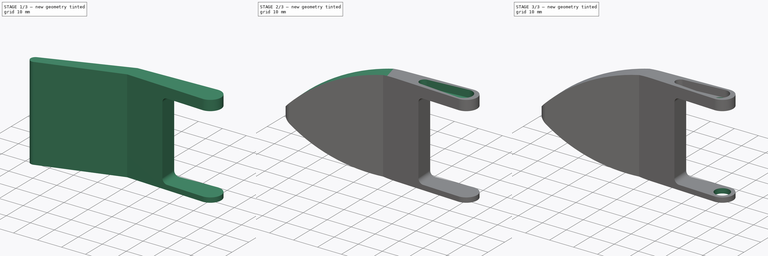
[diagram: build sequence overview — one tinted view per stage of 3, left to right]
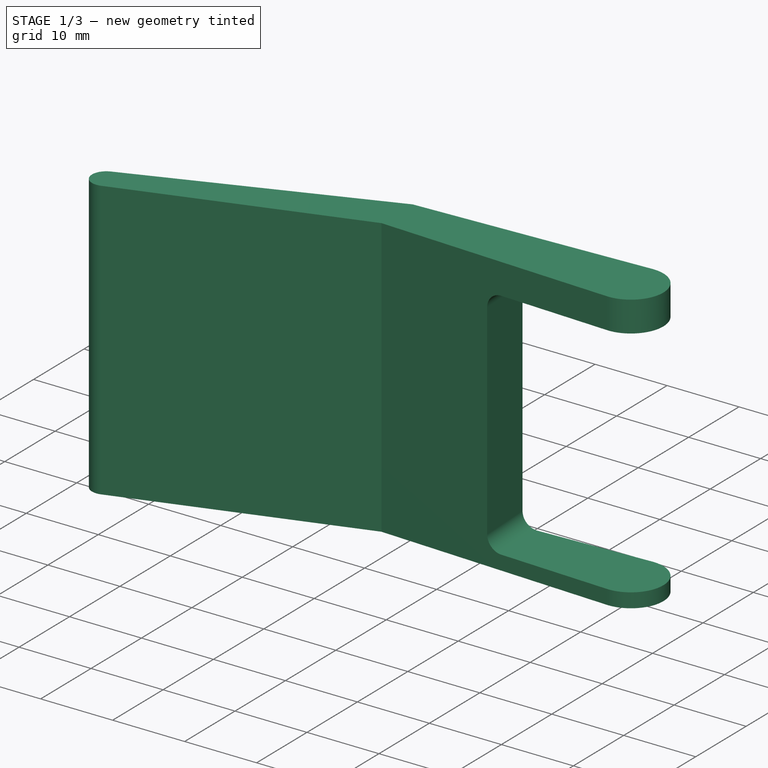
[diagram: stage 1 of 3 — iso view after this stage's code; geometry added in this stage tinted green]
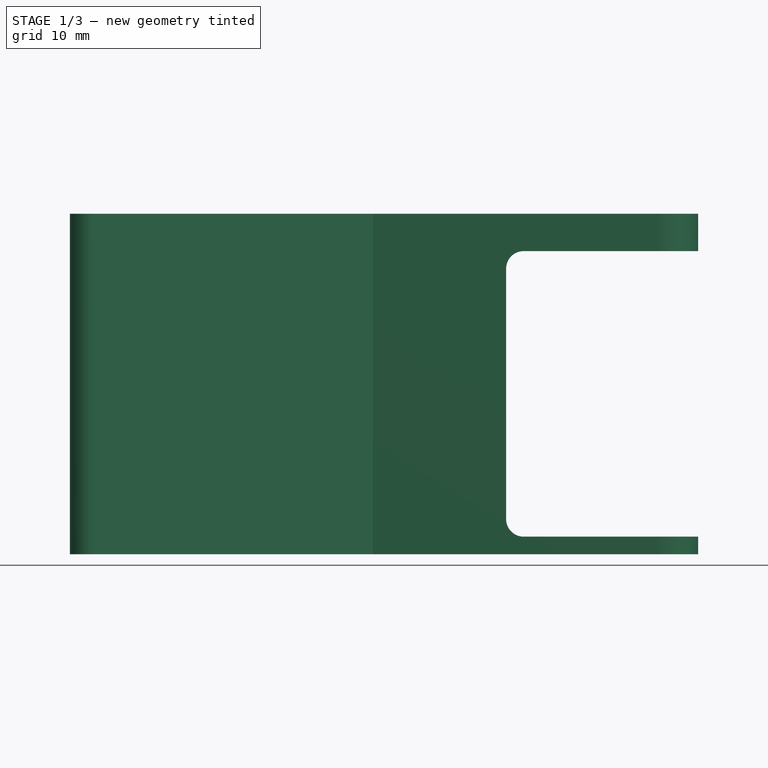
[diagram: stage 1 of 3 — front view after this stage's code; geometry added in this stage tinted green]
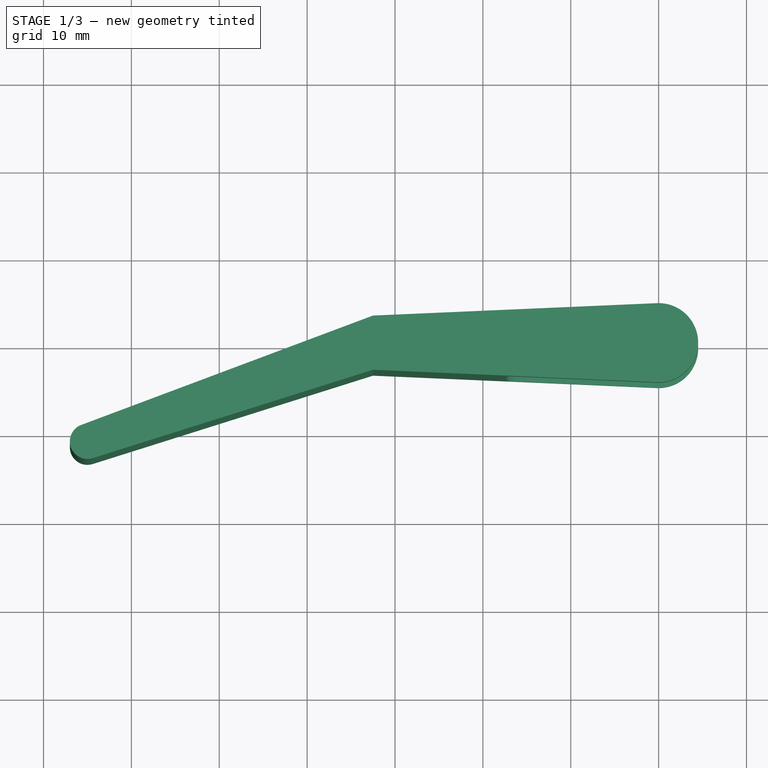
[diagram: stage 1 of 3 — top view after this stage's code; geometry added in this stage tinted green]
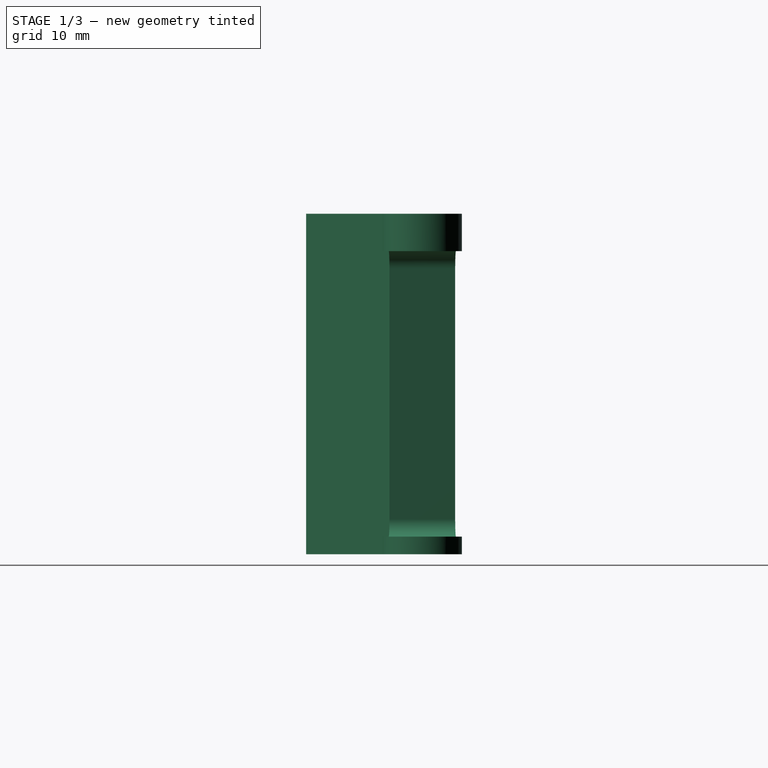
[diagram: stage 1 of 3 — right view after this stage's code; geometry added in this stage tinted green]
FCSTD DOCUMENT  (FreeCAD 0.19R)
Label: tibia
License: All rights reserved
LicenseURL: http://en.wikipedia.org/wiki/All_rights_reserved
objects: Sketcher::SketchObject×6, PartDesign::Pocket×5, PartDesign::Pad×1, PartDesign::Body×1
note: 19 computed .brp shape members not serialized (recipe doc carries the construction recipe); baked Part::Feature solids carry a one-line shape summary decoded from their .brp

FEATURE [Sketcher::SketchObject] Sketch
  MapMode = 5
  Support = -> [XY_Plane]
  sketch-geometry (11):
    g0: ArcOfCircle CenterX=0 CenterY=0 CenterZ=0 NormalX=0 NormalY=0 NormalZ=1 AngleXU=0 Radius=4.5 StartAngle=4.66876 EndAngle=7.89761
    g1: ArcOfCircle CenterX=-65 CenterY=-11.2355 CenterZ=0 NormalX=0 NormalY=0 NormalZ=1 AngleXU=0 Radius=2 StartAngle=1.92949 EndAngle=5.01782
    g2: LineSegment StartX=-65.7021 StartY=-9.36275 StartZ=0 EndX=-32.5 EndY=3.08531 EndZ=0
    g3: LineSegment StartX=-32.5 StartY=3.08531 StartZ=0 EndX=-0.196287 EndY=4.49572 EndZ=0
    g4: LineSegment StartX=-0.196287 StartY=-4.49572 StartZ=0 EndX=-32.5 EndY=-3.08531 EndZ=0
    g5: LineSegment StartX=-32.5 StartY=-3.08531 StartZ=0 EndX=-64.3986 EndY=-13.1429 EndZ=0
    g6: LineSegment [constr] StartX=-32.5 StartY=3.08531 StartZ=0 EndX=-32.5 EndY=0 EndZ=0
    g7: LineSegment [constr] StartX=-32.5 StartY=0 StartZ=0 EndX=-32.5 EndY=-3.08531 EndZ=0
    g8: LineSegment [constr] StartX=-67 StartY=-18.8756 StartZ=0 EndX=4.5 EndY=-18.8756 EndZ=0
    g9: LineSegment [constr] StartX=4.5 StartY=-18.8756 StartZ=0 EndX=4.5 EndY=8.34461 EndZ=0
    g10: LineSegment [constr] StartX=-67 StartY=-18.8756 StartZ=0 EndX=-67 EndY=-5.33436 EndZ=0
  constraints (27):
    c: Coincident(g0,g-1)
    c: Radius(g0) = 4.5
    c: Radius(g1) = 2
    c: Tangent(g1,g2) = 1.5708
    c: Coincident(g2,g3)
    c: Tangent(g0,g4) = 1.5708
    c: Coincident(g4,g5)
    c: Tangent(g5,g1) = 1.5708
    c: Tangent(g3,g0) = 1.5708
    c: DistanceX(g1,g0) = 65
    c: Angle(g5,g4) = 2.79253
    c: Vertical(g2,g4)
    c: Angle(g0) = 3.22886
    c: DistanceX(g4,g0) = 32.5
    c: Coincident(g6,g2)
    c: PointOnObject(g6,g-1)
    c: Vertical(g6)
    c: Coincident(g7,g6)
    c: Coincident(g7,g4)
    c: Equal(g6,g7)
    c: Horizontal(g8)
    c: Coincident(g9,g8)
    c: Vertical(g9)
    c: Tangent(g0,g9)
    c: Coincident(g10,g8)
    c: Vertical(g10)
    c: Tangent(g10,g1)
FEATURE [PartDesign::Pad] Pad
  Length = 38.75
  Length2 = 100
  Profile = -> Sketch
  Type = 0
FEATURE [Sketcher::SketchObject] Sketch001
  ExternalGeometry = -> [Pad]
  MapMode = 5
  Placement = pos=(-0.196287,4.49572,0) rot=(-0.015427,0.707023,0.707023;3.17245rad)
  Support = -> [Pad]
  sketch-geometry (8):
    g0: LineSegment StartX=-4.5 StartY=34.5 StartZ=0 EndX=15.5 EndY=34.5 EndZ=0
    g1: LineSegment StartX=17.5 StartY=32.5 StartZ=0 EndX=17.5 EndY=4 EndZ=0
    g2: LineSegment StartX=15.5 StartY=2 StartZ=0 EndX=-4.5 EndY=2 EndZ=0
    g3: LineSegment StartX=-4.5 StartY=2 StartZ=0 EndX=-4.5 EndY=34.5 EndZ=0
    g4: ArcOfCircle CenterX=15.5 CenterY=32.5 CenterZ=0 NormalX=0 NormalY=0 NormalZ=1 AngleXU=0 Radius=2 StartAngle=-1.8e-15 EndAngle=1.5708
    g5: ArcOfCircle CenterX=15.5 CenterY=4 CenterZ=0 NormalX=0 NormalY=0 NormalZ=1 AngleXU=0 Radius=2 StartAngle=4.71239 EndAngle=6.28319
    g6: LineSegment [constr] StartX=15.5 StartY=2 StartZ=0 EndX=15.5 EndY=0 EndZ=0
    g7: LineSegment [constr] StartX=15.5 StartY=34.5 StartZ=0 EndX=15.5 EndY=38.75 EndZ=0
  constraints (22):
    c: Coincident(g2,g3)
    c: Coincident(g3,g0)
    c: Horizontal(g0)
    c: Horizontal(g2)
    c: Vertical(g1)
    c: Vertical(g3)
    c: Tangent(g0,g4) = 1.5708
    c: Tangent(g1,g4) = 1.5708
    c: Tangent(g1,g5) = 1.5708
    c: Tangent(g2,g5) = 1.5708
    c: Equal(g5,g4)
    c: Radius(g5) = 2
    c: DistanceX(g0,g0) = 20
    c: Coincident(g6,g2)
    c: PointOnObject(g6,g-1)
    c: Vertical(g6)
    c: Coincident(g7,g0)
    c: PointOnObject(g7,g-3)
    c: Vertical(g7)
    c: DistanceX(g-2,g2) = -4.5
    c: DistanceY(g6,g6) = 2
    c: Distance(g0,g2) = 32.5
FEATURE [PartDesign::Pocket] Pocket
  BaseFeature = -> Pad
  Length = 5
  Length2 = 100
  Profile = -> Sketch001
  Type = 1
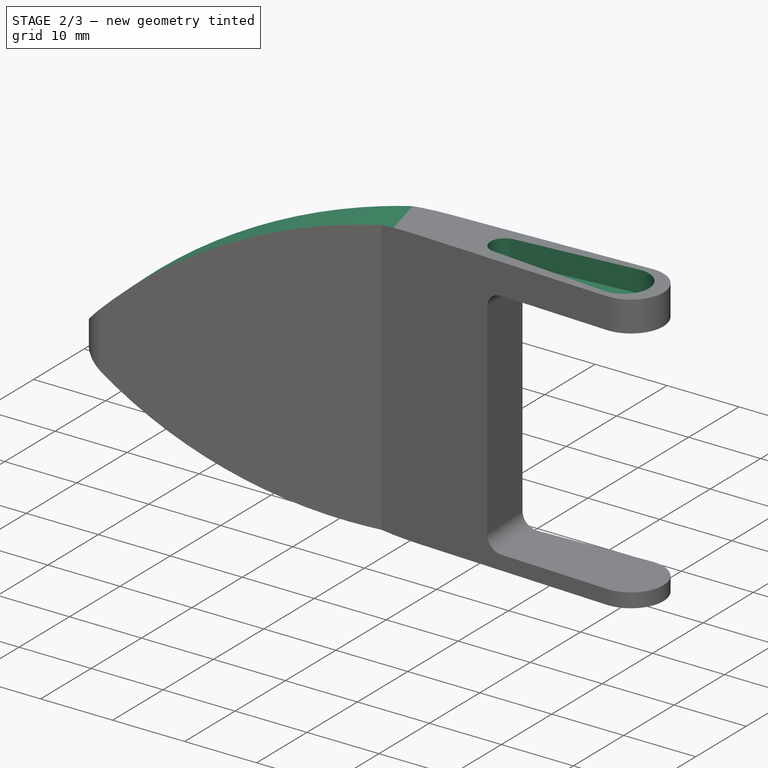
[diagram: stage 2 of 3 — iso view after this stage's code; geometry added in this stage tinted green]
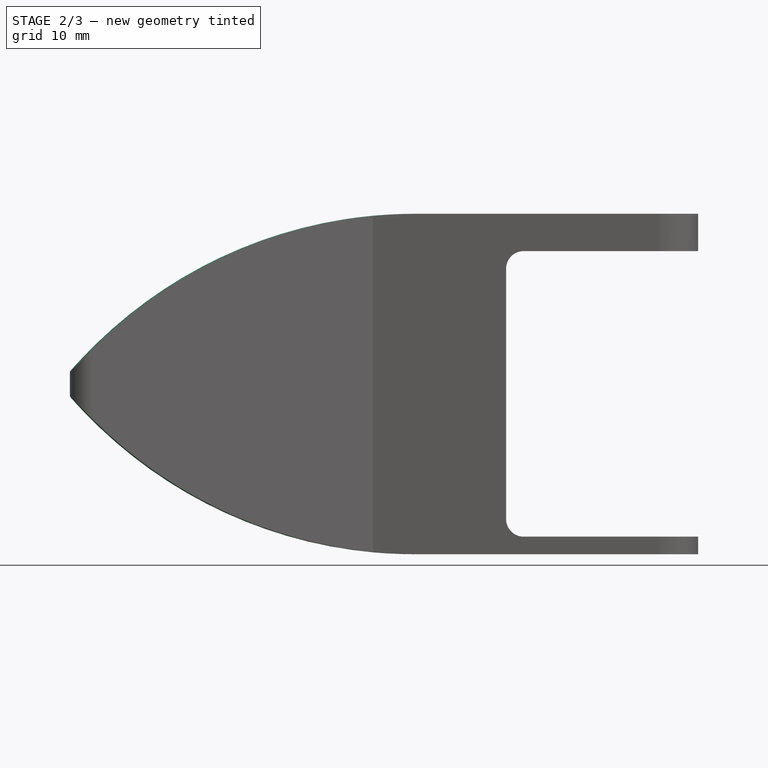
[diagram: stage 2 of 3 — front view after this stage's code; geometry added in this stage tinted green]
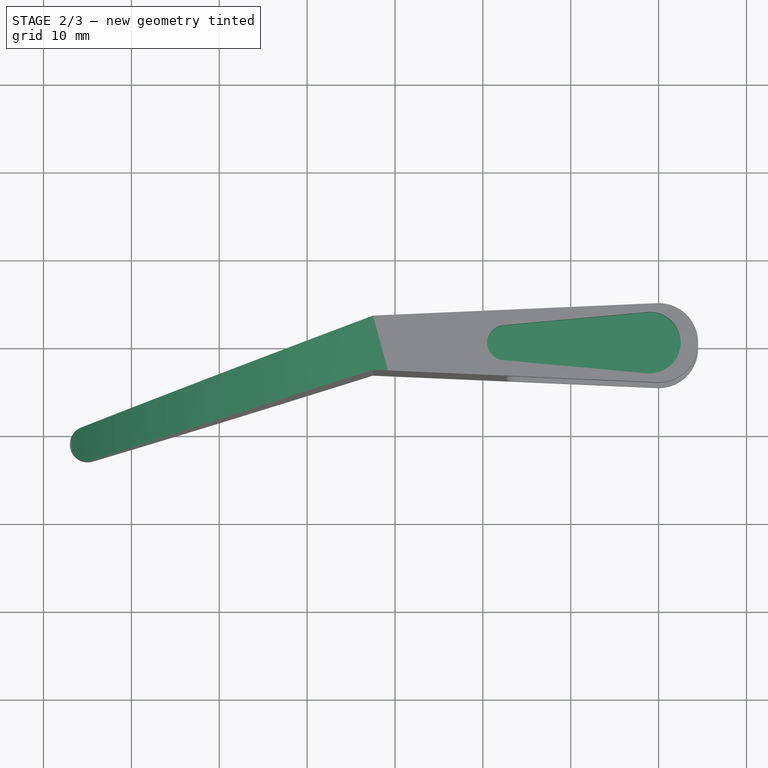
[diagram: stage 2 of 3 — top view after this stage's code; geometry added in this stage tinted green]
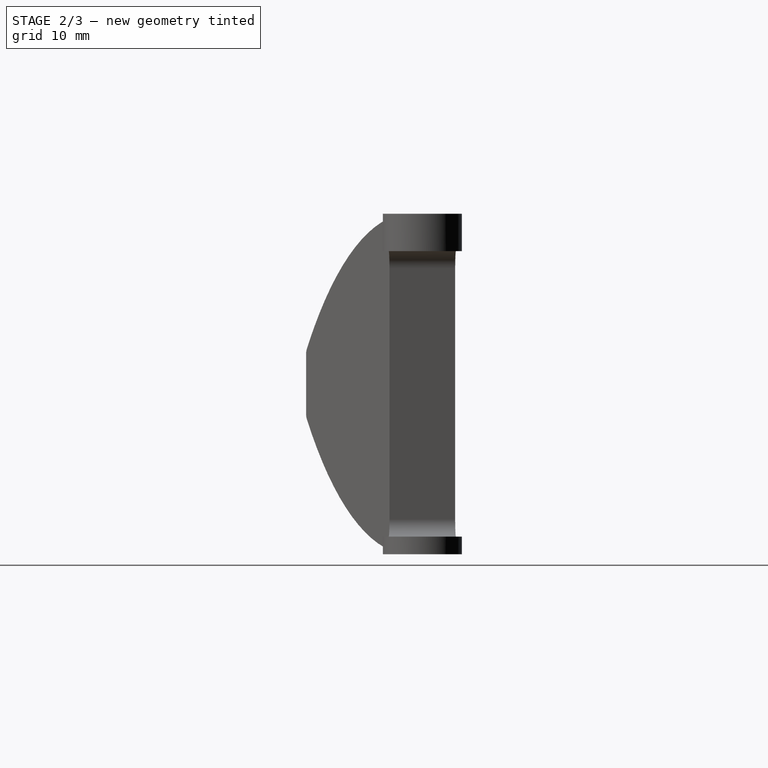
[diagram: stage 2 of 3 — right view after this stage's code; geometry added in this stage tinted green]
FEATURE [Sketcher::SketchObject] Sketch002
  ExternalGeometry = -> [Pocket]
  MapMode = 5
  Placement = pos=(-0.196287,4.49572,0) rot=(-0.015427,0.707023,0.707023;3.17245rad)
  Support = -> [Pocket]
  sketch-geometry (12):
    g0: LineSegment StartX=17.5 StartY=0 StartZ=0 EndX=74.557 EndY=0 EndZ=0
    g1: LineSegment StartX=74.557 StartY=0 StartZ=0 EndX=74.557 EndY=38.75 EndZ=0
    g2: LineSegment StartX=74.557 StartY=38.75 StartZ=0 EndX=17.5 EndY=38.75 EndZ=0
    g3: LineSegment [constr] StartX=66 StartY=19.375 StartZ=0 EndX=66 EndY=38.75 EndZ=0
    g4: LineSegment [constr] StartX=66 StartY=19.375 StartZ=0 EndX=66 EndY=0 EndZ=0
    g5: LineSegment StartX=17.5 StartY=0 StartZ=0 EndX=27.5 EndY=0 EndZ=0
    g6: LineSegment StartX=66 StartY=16.4779 StartZ=0 EndX=67.4469 EndY=17.9943 EndZ=0
    g7: LineSegment StartX=67.4469 StartY=20.7557 StartZ=0 EndX=66 EndY=22.2721 EndZ=0
    g8: LineSegment StartX=27.5 StartY=38.75 StartZ=0 EndX=17.5 EndY=38.75 EndZ=0
    g9: ArcOfCircle CenterX=66 CenterY=19.375 CenterZ=0 NormalX=0 NormalY=0 NormalZ=1 AngleXU=0 Radius=2 StartAngle=5.5212 EndAngle=7.04517
    g10: ArcOfCircle CenterX=27.5 CenterY=53.2158 CenterZ=0 NormalX=0 NormalY=0 NormalZ=1 AngleXU=0 Radius=53.2158 StartAngle=4.71239 EndAngle=5.5212
    g11: ArcOfCircle CenterX=27.5 CenterY=-14.4658 CenterZ=0 NormalX=0 NormalY=0 NormalZ=1 AngleXU=0 Radius=53.2158 StartAngle=0.761981 EndAngle=1.5708
  constraints (32):
    c: Horizontal(g0)
    c: Coincident(g0,g1)
    c: Vertical(g1)
    c: Coincident(g1,g2)
    c: Horizontal(g2)
    c: Vertical(g0,g2)
    c: PointOnObject(g0,g-1)
    c: Horizontal(g2,g-3)
    c: PointOnObject(g3,g2)
    c: Vertical(g3)
    c: PointOnObject(g4,g0)
    c: Vertical(g4)
    c: Equal(g4,g3)
    c: Coincident(g0,g5)
    c: Coincident(g8,g2)
    c: Tangent(g6,g9) = -1.5708
    c: Tangent(g7,g9) = -1.5708
    c: Tangent(g5,g10) = -1.5708
    c: Tangent(g6,g10) = -1.5708
    c: Tangent(g7,g11) = -1.5708
    c: Tangent(g8,g11) = -1.5708
    c: Coincident(g9,g3)
    c: Coincident(g4,g9)
    c: Radius(g9) = 2
    c: Vertical(g10,g11)
    c: Equal(g10,g11)
    c: Vertical(g0,g-4)
    c: PointOnObject(g5,g-1)
    c: DistanceX(g-2,g9) = 66
    c: Distance(g5,g0) = 10
    c: Vertical(g8,g5)
    c: Vertical(g3,g7)
FEATURE [PartDesign::Pocket] Pocket001
  BaseFeature = -> Pocket
  Length = 5
  Length2 = 100
  Profile = -> Sketch002
  Type = 1
FEATURE [Sketcher::SketchObject] Sketch003
  ExternalGeometry = -> [Pocket001]
  MapMode = 5
  Placement = pos=(0,0,38.75) rot=(0,0,1;0rad)
  Support = -> [Pocket001]
  sketch-geometry (7):
    g0: Circle [constr] CenterX=-1 CenterY=0 CenterZ=0 NormalX=0 NormalY=0 NormalZ=1 AngleXU=0 Radius=3.5
    g1: Circle [constr] CenterX=-17.5 CenterY=0 CenterZ=0 NormalX=0 NormalY=0 NormalZ=1 AngleXU=0 Radius=2
    g2: ArcOfCircle CenterX=-17.5 CenterY=0 CenterZ=0 NormalX=0 NormalY=0 NormalZ=1 AngleXU=0 Radius=2 StartAngle=1.66183 EndAngle=4.62135
    g3: ArcOfCircle CenterX=-1 CenterY=0 CenterZ=0 NormalX=0 NormalY=0 NormalZ=1 AngleXU=0 Radius=3.5 StartAngle=4.62135 EndAngle=7.94502
    g4: LineSegment StartX=-17.6818 StartY=1.99172 StartZ=0 EndX=-1.31818 EndY=3.48551 EndZ=0
    g5: LineSegment StartX=-17.6818 StartY=-1.99172 StartZ=0 EndX=-1.3182 EndY=-3.48551 EndZ=0
    g6: GeomPoint X=4.5 Y=0 Z=0
  constraints (17):
    c: Coincident(g2,g1)
    c: PointOnObject(g2,g1)
    c: Coincident(g3,g0)
    c: PointOnObject(g3,g0)
    c: Radius(g0) = 3.5
    c: Radius(g2) = 2
    c: Horizontal(g2,g3)
    c: Coincident(g5,g3)
    c: Tangent(g5,g0)
    c: Tangent(g5,g2) = -1.5708
    c: Tangent(g4,g2) = 1.5708
    c: Tangent(g4,g3) = 1.5708
    c: DistanceX(g2,g3) = 16.5
    c: PointOnObject(g3,g-1)
    c: PointOnObject(g6,g-1)
    c: PointOnObject(g6,g-3)
    c: DistanceX(g3,g6) = 5.5
FEATURE [PartDesign::Pocket] Pocket002
  BaseFeature = -> Pocket001
  Length = 3
  Length2 = 100
  Profile = -> Sketch003
  Type = 0
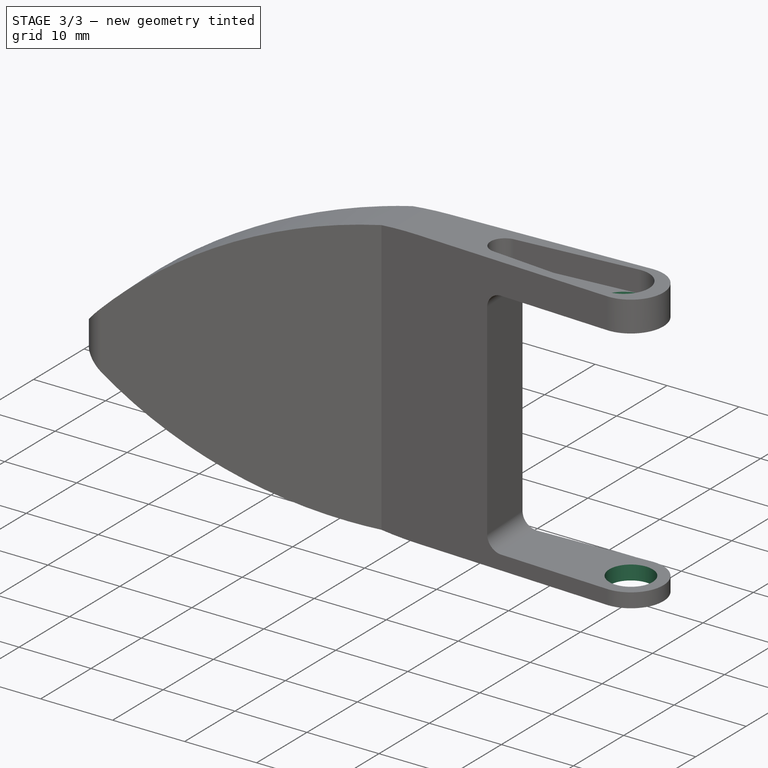
[diagram: stage 3 of 3 — iso view after this stage's code; geometry added in this stage tinted green]
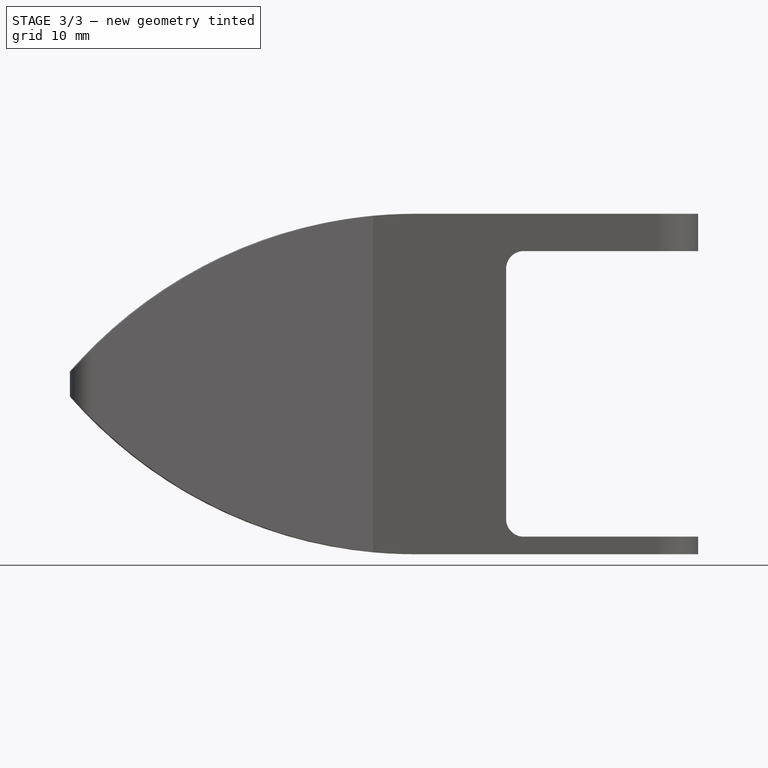
[diagram: stage 3 of 3 — front view after this stage's code; geometry added in this stage tinted green]
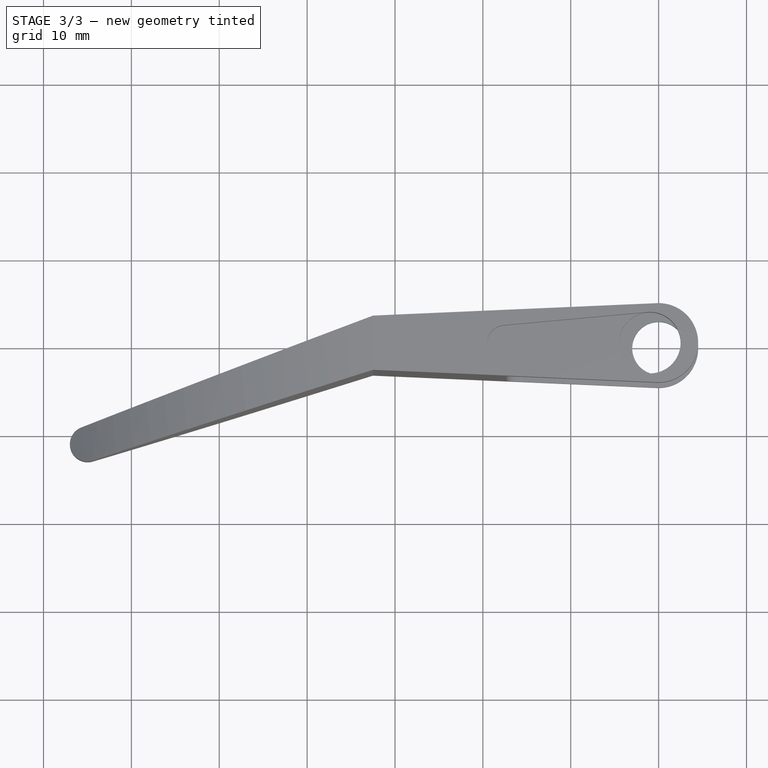
[diagram: stage 3 of 3 — top view after this stage's code; geometry added in this stage tinted green]
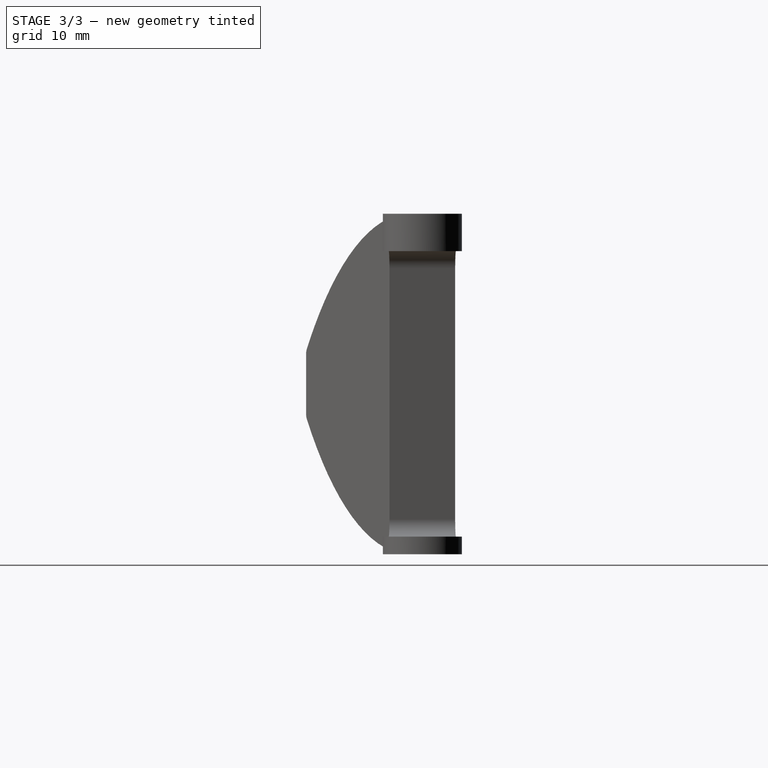
[diagram: stage 3 of 3 — right view after this stage's code; geometry added in this stage tinted green]
FEATURE [Sketcher::SketchObject] Sketch004
  ExternalGeometry = -> [Pocket002]
  MapMode = 5
  Placement = pos=(0,0,35.75) rot=(0,0,1;0rad)
  Support = -> [Pocket002]
  sketch-geometry (1):
    g0: Circle CenterX=-1 CenterY=0 CenterZ=0 NormalX=0 NormalY=0 NormalZ=1 AngleXU=0 Radius=3.5
  constraints (2):
    c: Coincident(g0,g-3)
    c: Equal(g0,g-3)
FEATURE [PartDesign::Pocket] Pocket003
  BaseFeature = -> Pocket002
  Length = 5
  Length2 = 100
  Profile = -> Sketch004
  Type = 0
FEATURE [Sketcher::SketchObject] Sketch005
  MapMode = 5
  Placement = pos=(0,0,0) rot=(1,0,0;3.14159rad)
  Support = -> [Pocket003]
  sketch-geometry (1):
    g0: Circle CenterX=0 CenterY=0 CenterZ=0 NormalX=0 NormalY=0 NormalZ=1 AngleXU=0 Radius=3
  constraints (2):
    c: Coincident(g0,g-1)
    c: Radius(g0) = 3
FEATURE [PartDesign::Pocket] Pocket004
  BaseFeature = -> Pocket003
  Length = 5
  Length2 = 100
  Profile = -> Sketch005
  Type = 0
FEATURE [PartDesign::Body] Body
  Group = -> [Sketch,Pad,Sketch001,Pocket,Sketch002,Pocket001,Sketch003,Pocket002,Sketch004,Pocket003,Sketch005,Pocket004]
  Origin = -> Origin
  Tip = -> Pocket004
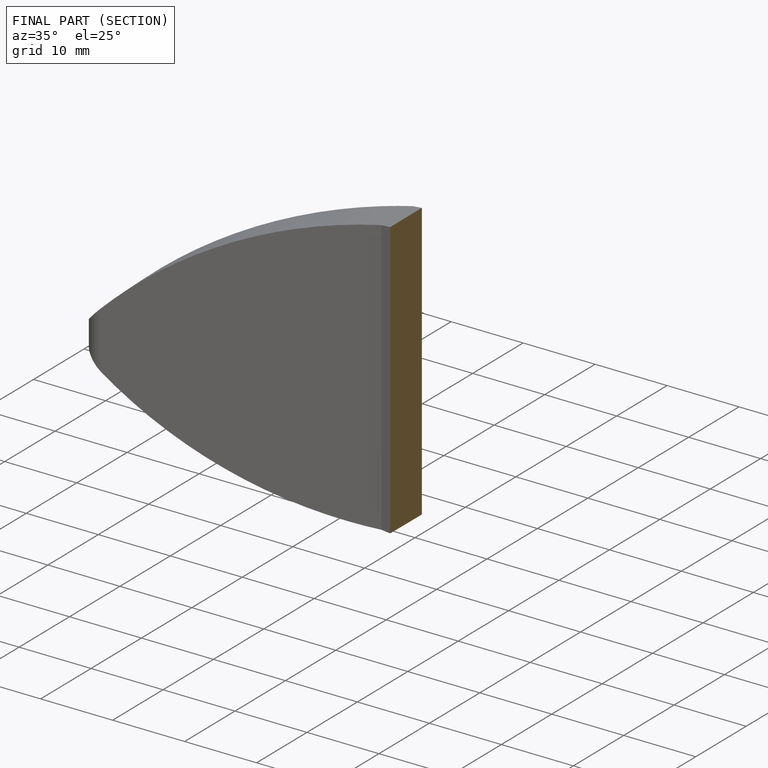
[diagram: finished part — half-section view (interior)]
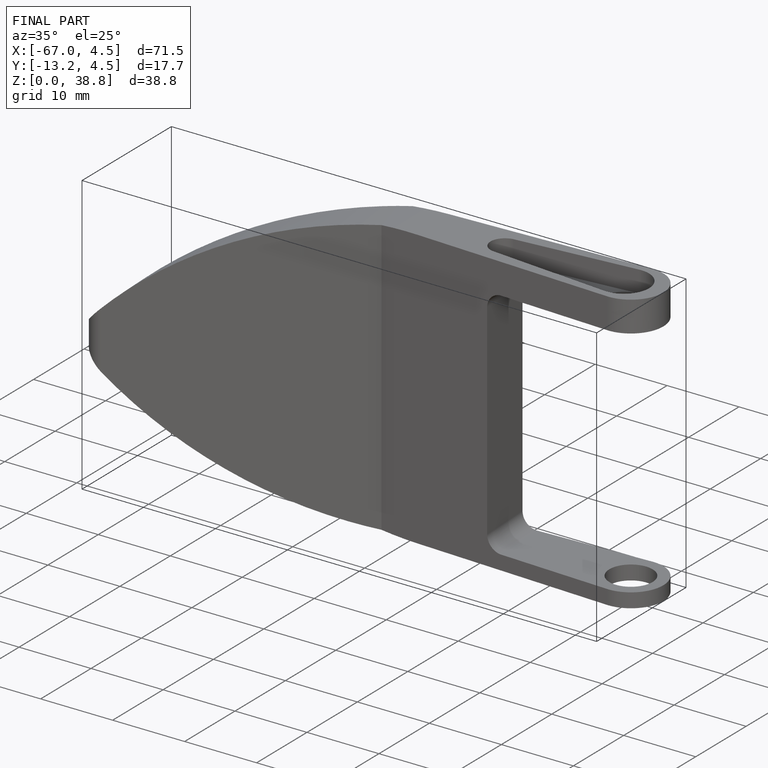
[diagram: finished part — iso view with bounding-box wireframe]
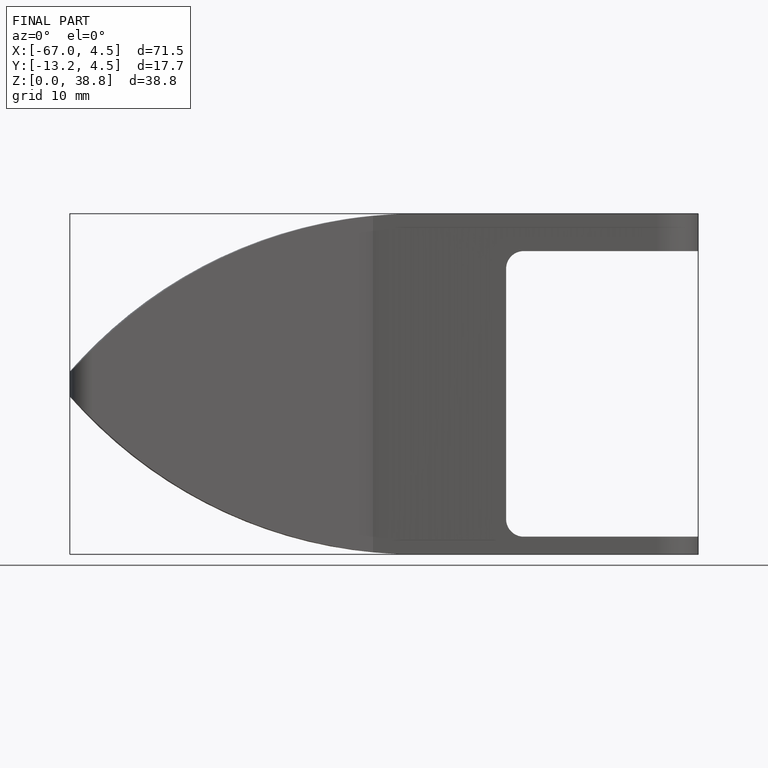
[diagram: finished part — front view with bounding-box wireframe]
